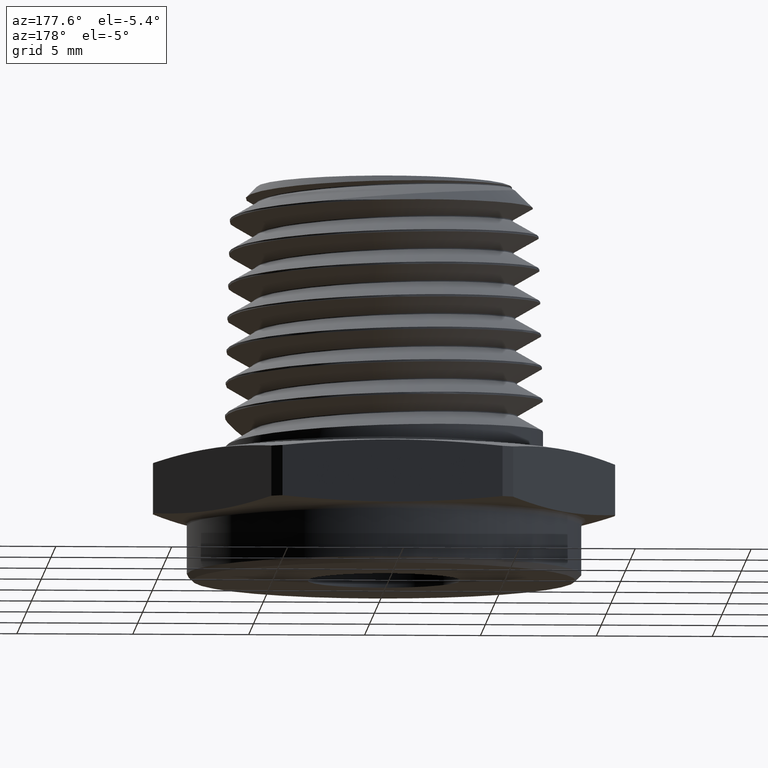
[diagram: clean part render]
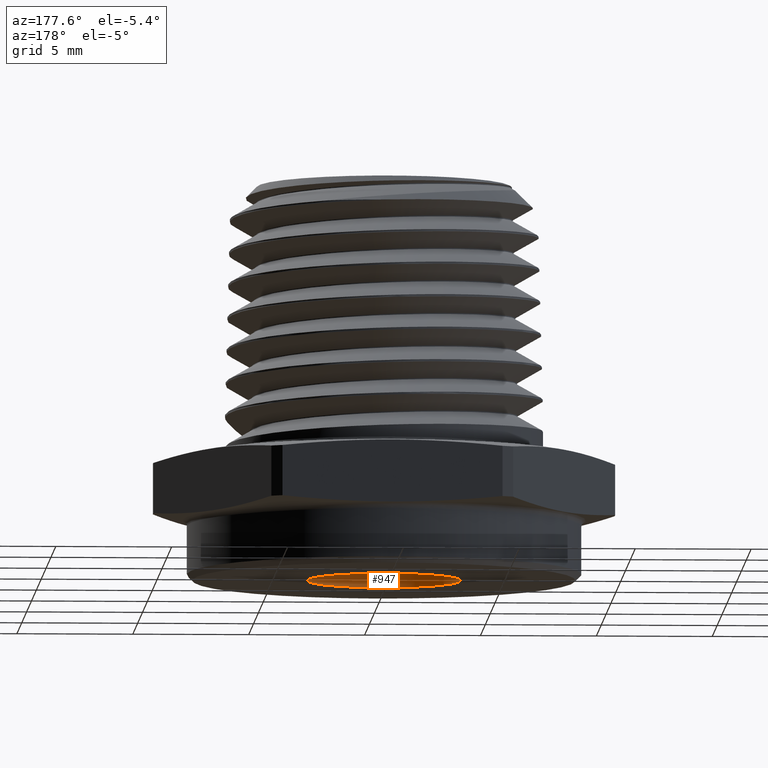
[diagram: same view with one face highlighted and labeled with its STEP entity id]
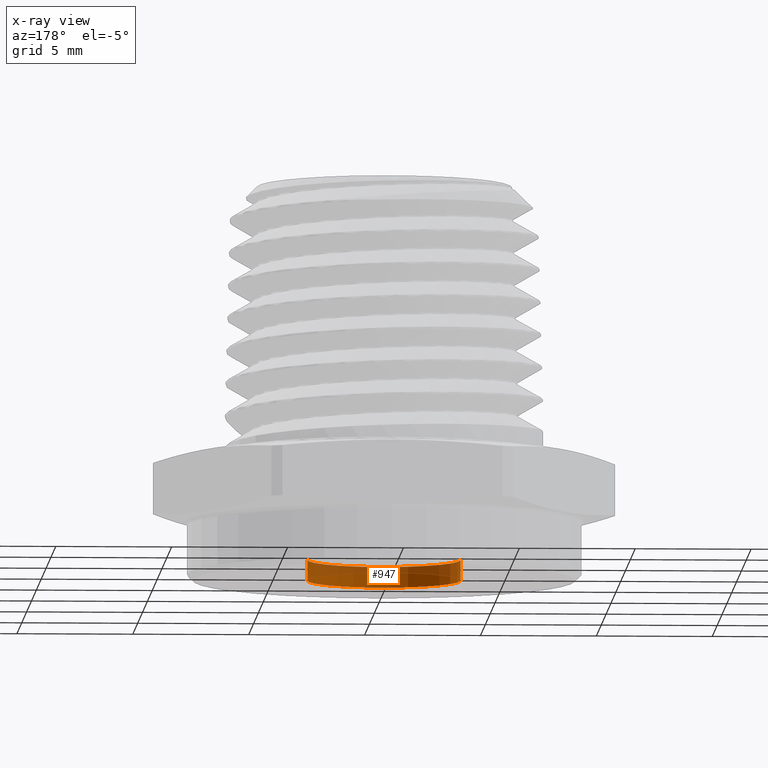
[diagram: x-ray of the same camera — body ghosted, the highlighted face saturated]
A machine part, auxiliary view. The second image highlights one B-rep face of the part: STEP entity #947.
The next image is the same camera in x-ray: the body ghosted, the highlighted face saturated — about 43% of this face is hidden behind the body in this view.
In plain terms, the highlighted cylindrical surface (partial cylindrical patch) has radius 3.302 mm, axis along (-0, -0, -1).
Its self-contained STEP definition (entity closure, byte-faithful):
#31 = ORIENTED_EDGE ( 'NONE', *, *, #1438, .F. ) ;
#40 = ORIENTED_EDGE ( 'NONE', *, *, #1435, .T. ) ;
#41 = ORIENTED_EDGE ( 'NONE', *, *, #1437, .T. ) ;
#164 = DIRECTION ( 'NONE',  ( -1.000000000000000000, 0.0000000000000000000, 1.313388458492434200E-016 ) ) ;
#183 = CARTESIAN_POINT ( 'NONE',  ( -1.224646799147327800E-018, 0.0000000000000000000, -0.1000000000000000100 ) ) ;
#184 = DIRECTION ( 'NONE',  ( -1.241027080502703100E-016, -0.0000000000000000000, -1.000000000000000000 ) ) ;
#646 = CARTESIAN_POINT ( 'NONE',  ( -0.1300000000000000000, 0.0000000000000000000, -0.06500000000000000200 ) ) ;
#947 = ADVANCED_FACE ( 'NONE', ( #1073 ), #1074, .F. ) ;
#1073 = FACE_OUTER_BOUND ( 'NONE', #1629, .T. ) ;
#1074 = CYLINDRICAL_SURFACE ( 'NONE', #1162, 0.1300000000000000000 ) ;
#1162 = AXIS2_PLACEMENT_3D ( 'NONE', #183, #184, #164 ) ;
#1388 = VERTEX_POINT ( 'NONE', #646 ) ;
#1435 = EDGE_CURVE ( 'NONE', #1388, #1453, #2220, .T. ) ;
#1436 = EDGE_CURVE ( 'NONE', #1453, #1457, #2222, .T. ) ;
#1437 = EDGE_CURVE ( 'NONE', #1457, #1462, #2225, .T. ) ;
#1438 = EDGE_CURVE ( 'NONE', #1388, #1462, #2227, .T. ) ;
#1453 = VERTEX_POINT ( 'NONE', #4047 ) ;
#1457 = VERTEX_POINT ( 'NONE', #4053 ) ;
#1462 = VERTEX_POINT ( 'NONE', #4056 ) ;
#1517 = ORIENTED_EDGE ( 'NONE', *, *, #1436, .T. ) ;
#1629 = EDGE_LOOP ( 'NONE', ( #40, #1517, #41, #31 ) ) ;
#2220 = CIRCLE ( 'NONE', #2289, 0.1300000000000000000 ) ;
#2222 = LINE ( 'NONE', #3966, #2226 ) ;
#2225 = CIRCLE ( 'NONE', #2290, 0.1300000000000000000 ) ;
#2226 = VECTOR ( 'NONE', #3963, 39.37007874015748100 ) ;
#2227 = LINE ( 'NONE', #3964, #2229 ) ;
#2229 = VECTOR ( 'NONE', #3965, 39.37007874015748100 ) ;
#2289 = AXIS2_PLACEMENT_3D ( 'NONE', #3967, #3968, #3969 ) ;
#2290 = AXIS2_PLACEMENT_3D ( 'NONE', #3970, #3971, #3972 ) ;
#3963 = DIRECTION ( 'NONE',  ( -1.241027080502703100E-016, -0.0000000000000000000, -1.000000000000000000 ) ) ;
#3964 = CARTESIAN_POINT ( 'NONE',  ( -0.1300000000000000000, 0.0000000000000000000, -0.09999999999999999200 ) ) ;
#3965 = DIRECTION ( 'NONE',  ( -1.241027080502703100E-016, -0.0000000000000000000, -1.000000000000000000 ) ) ;
#3966 = CARTESIAN_POINT ( 'NONE',  ( 0.1300000000000000000, 1.592040838891559300E-017, -0.1000000000000000200 ) ) ;
#3967 = CARTESIAN_POINT ( 'NONE',  ( 3.118947982612131400E-018, 0.0000000000000000000, -0.06500000000000003000 ) ) ;
#3968 = DIRECTION ( 'NONE',  ( 1.241027080502703100E-016, 0.0000000000000000000, 1.000000000000000000 ) ) ;
#3969 = DIRECTION ( 'NONE',  ( -1.000000000000000000, 0.0000000000000000000, 1.313388458492434200E-016 ) ) ;
#3970 = CARTESIAN_POINT ( 'NONE',  ( -1.224646799147329700E-018, 0.0000000000000000000, -0.1000000000000000200 ) ) ;
#3971 = DIRECTION ( 'NONE',  ( -1.241027080502703100E-016, -0.0000000000000000000, -1.000000000000000000 ) ) ;
#3972 = DIRECTION ( 'NONE',  ( -1.000000000000000000, 0.0000000000000000000, 1.313388458492434200E-016 ) ) ;
#4047 = CARTESIAN_POINT ( 'NONE',  ( 0.1300000000000000000, 1.592040838891559300E-017, -0.06500000000000004400 ) ) ;
#4053 = CARTESIAN_POINT ( 'NONE',  ( 0.1300000000000000000, 1.592040838891559300E-017, -0.1000000000000000500 ) ) ;
#4056 = CARTESIAN_POINT ( 'NONE',  ( -0.1300000000000000000, 0.0000000000000000000, -0.1000000000000000100 ) ) ;